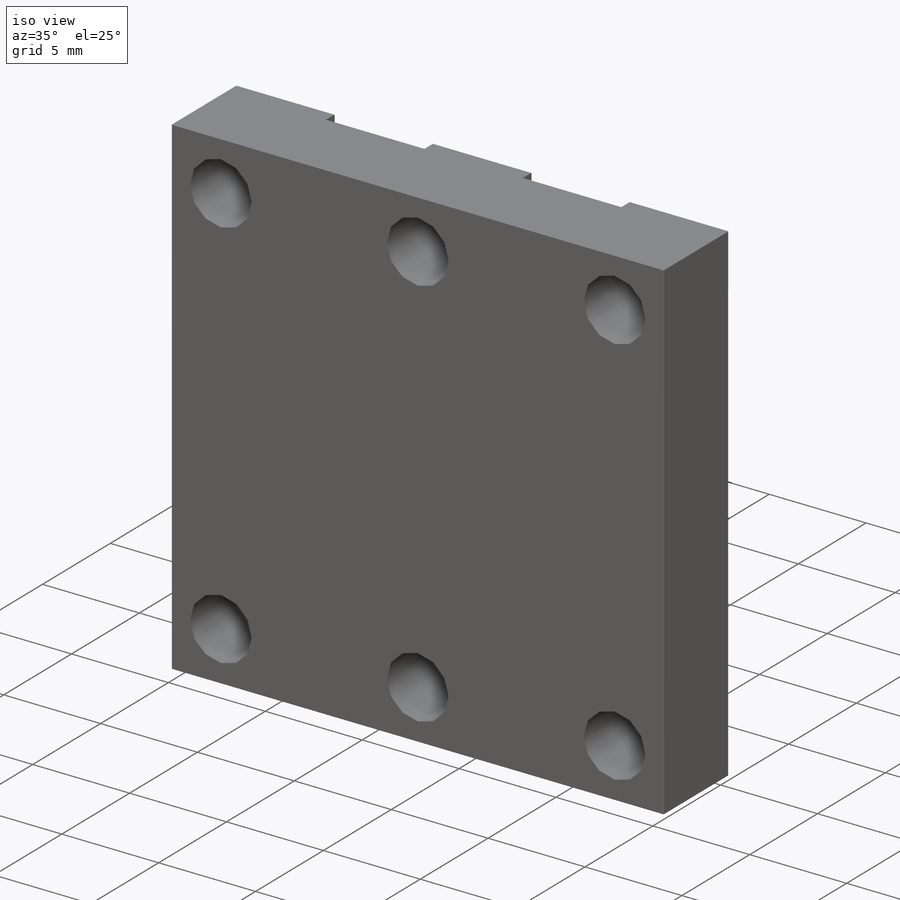
[diagram: iso view]
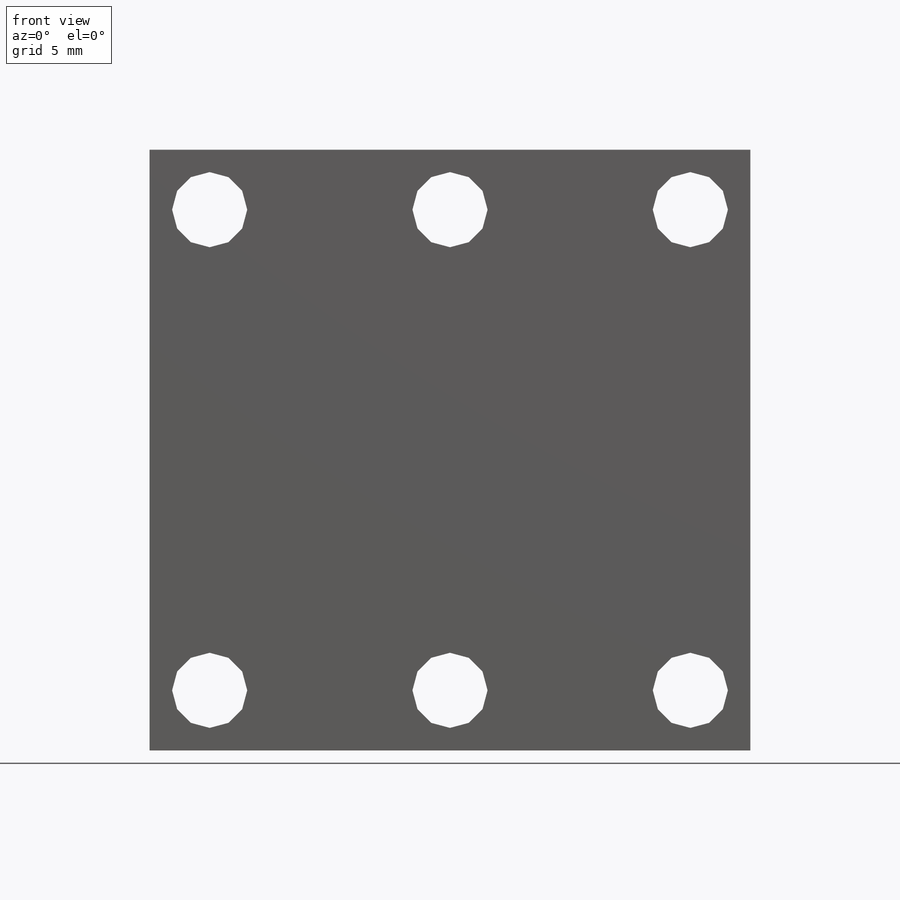
[diagram: front view]
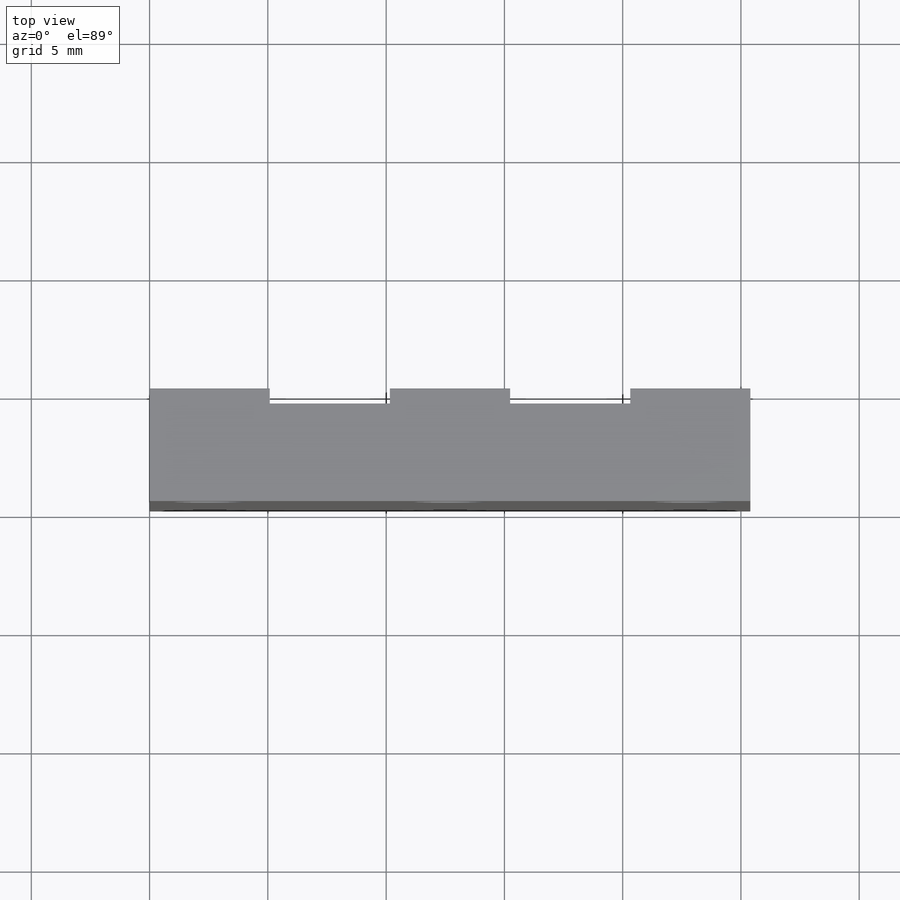
[diagram: top view]
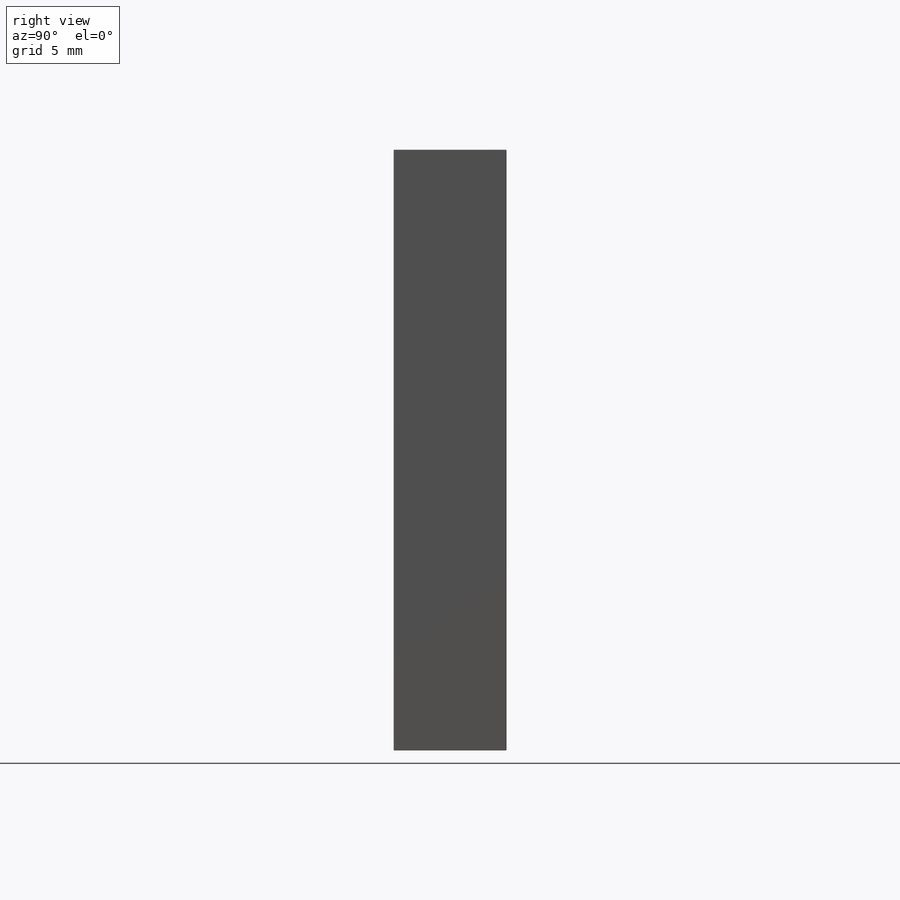
[diagram: right view]
SOLIDWORKS PART (.sldprt)
format: sldprt  version: not decoded by parser v0  size: 260,096 bytes
history: native  units: mm
features: sketch x4, fillet x2, hole x2, material x1, extrude x1, cut_extrude x1 + 1 further entry (+13 scaffold rows collapsed)
feature tree (25):
  scaffold x13  (default folders/planes/origin — collapsed)
  material  "6061-T6 Al"
  "Origin"  ID=-1
  sketch  "Sketch1"  dims[c1.D1=~31.665215mm c1.D2=~32.10258mm c2.D1=25.4mm c2.D2=25.4mm]
  extrude  "Extrude1"  Depth=4.7625mm
  fillet  "Fillet1"  Radius=0.0254mm
  fillet  "Fillet2"  Radius=0.0254mm
  sketch  "Sketch3"  dims[c1.D1=~27.684526mm c1.D2=~4.591344mm c2.D1=~28.366677mm c2.D2=~6.46399mm c3.D1=~28.366677mm c3.D2=~7.086507mm c4.D1=~28.366677mm c5.D1=90.0deg c6.D1=5.08mm c6.D2=~28.366677mm c6.D3=~5.912557mm c7.D2=5.08mm c7.D3=5.08mm c7.D4=5.08mm]
  cut_extrude  "Extrude3"  Depth=0.635mm
  hole  "1/8 (0.125) Diameter Hole1"  [1 undecoded]
  sketch  "Sketch5"  dims[D1=0.0mm D2=2.54mm D3=7.62mm D4=12.7mm D5=17.78mm D6=22.86mm D7=0.0mm D8=2.54mm D9=22.86mm]
  hole  "AlignGroup2"  Diameter=3.175mm Depth=4.7625mm
  sketch  "Sketch4"  dims[hole-wizard template sketch: 60 standard entries collapsed; hole parameters kept: c18.Thru Hole Depth=4.7625mm]
decode coverage: 9 of 10 modeling features carry decoded parameters; 1 rows unclassified (native names shown)
note: ~ marks probable driven/reference dimensions
note: 1 parameter value undecoded
note: suppression state not decoded; provenance and decode notes live in map.json
